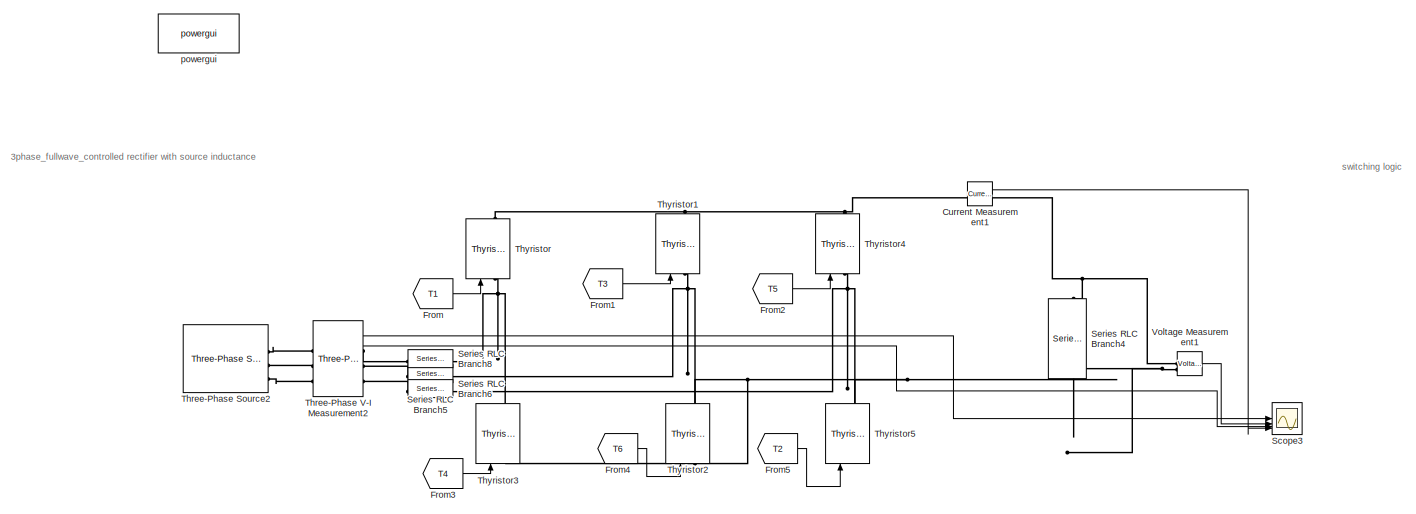
[diagram: root canvas - part 1/3, top left region]
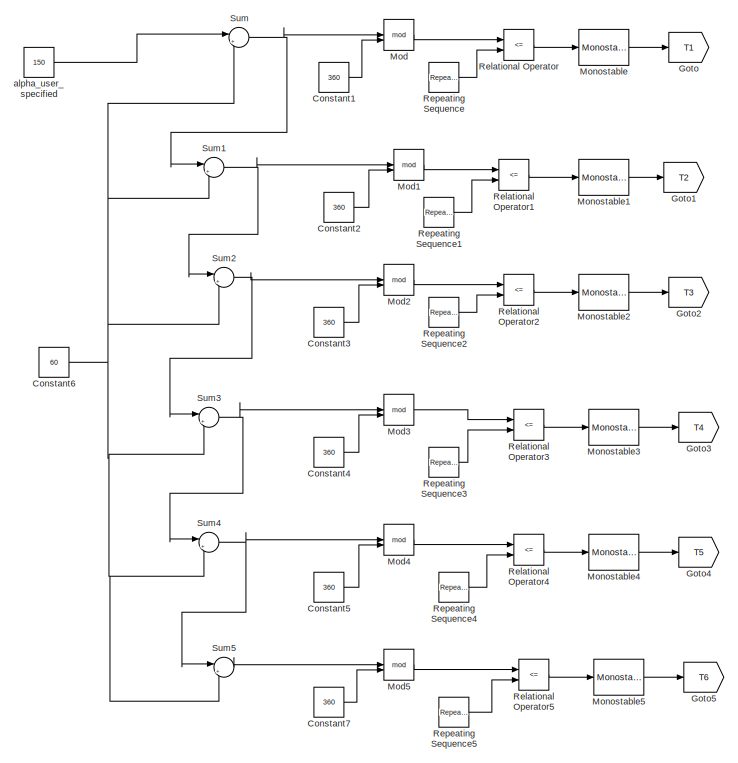
[diagram: root canvas - part 2/3, right side, full height]
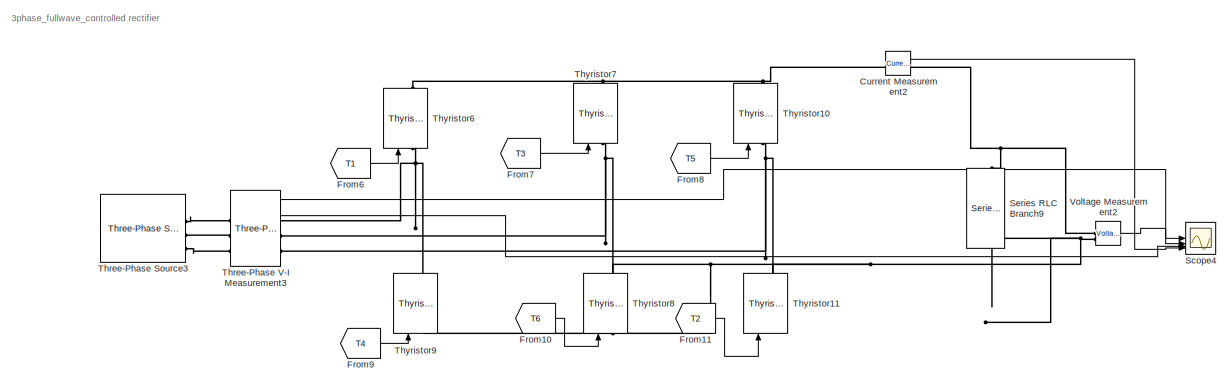
[diagram: root canvas - part 3/3, bottom left region]
MODEL slx_f07519f8de92
KIND model
CONFIG AbsTol = auto
CONFIG EnableMultiTasking = off
CONFIG FixedStep = auto
CONFIG MaxStep = auto
CONFIG MinStep = auto
CONFIG RelTol = 1e-3
CONFIG SampleTimeConstraint = Unconstrained
CONFIG SolverName = VariableStepAuto
CONFIG StartTime = 0.0
CONFIG StopTime = .1
BLOCK [Constant] Constant1
  Value = 360
BLOCK [Constant] Constant2
  Value = 360
BLOCK [Constant] Constant3
  Value = 360
BLOCK [Constant] Constant4
  Value = 360
BLOCK [Constant] Constant5
  Value = 360
BLOCK [Constant] Constant6
  Value = 60
BLOCK [Constant] Constant7
  Value = 360
BLOCK [Reference] Current Measurement1  REF=spsCurrentMeasurementLib/Current Measurement
  LibrarySourceBlock = sps_lib/Sensors and Measurements/Current Measurement
  SourceBlock = spsCurrentMeasurementLib/Current Measurement
  SourceType = Current Measurement
  UserDataPersistent = on
BLOCK [Reference] Current Measurement2  REF=spsCurrentMeasurementLib/Current Measurement
  LibrarySourceBlock = sps_lib/Sensors and Measurements/Current Measurement
  SourceBlock = spsCurrentMeasurementLib/Current Measurement
  SourceType = Current Measurement
  UserDataPersistent = on
BLOCK [From] From
  GotoTag = T1
BLOCK [From] From1
  GotoTag = T3
BLOCK [From] From10
  GotoTag = T6
BLOCK [From] From11
  GotoTag = T2
BLOCK [From] From2
  GotoTag = T5
BLOCK [From] From3
  GotoTag = T4
BLOCK [From] From4
  GotoTag = T6
BLOCK [From] From5
  GotoTag = T2
BLOCK [From] From6
  GotoTag = T1
BLOCK [From] From7
  GotoTag = T3
BLOCK [From] From8
  GotoTag = T5
BLOCK [From] From9
  GotoTag = T4
BLOCK [Goto] Goto
  GotoTag = T1
BLOCK [Goto] Goto1
  GotoTag = T2
BLOCK [Goto] Goto2
  GotoTag = T3
BLOCK [Goto] Goto3
  GotoTag = T4
BLOCK [Goto] Goto4
  GotoTag = T5
BLOCK [Goto] Goto5
  GotoTag = T6
BLOCK [Math] Mod
  Operator = mod
BLOCK [Math] Mod1
  Operator = mod
BLOCK [Math] Mod2
  Operator = mod
BLOCK [Math] Mod3
  Operator = mod
BLOCK [Math] Mod4
  Operator = mod
BLOCK [Math] Mod5
  Operator = mod
BLOCK [Reference] Monostable  REF=spsMonostableLib/Monostable
  LibrarySourceBlock = sps_lib/Control/Monostable
  SourceBlock = spsMonostableLib/Monostable
  SourceType = Monostable
BLOCK [Reference] Monostable1  REF=spsMonostableLib/Monostable
  LibrarySourceBlock = sps_lib/Control/Monostable
  SourceBlock = spsMonostableLib/Monostable
  SourceType = Monostable
BLOCK [Reference] Monostable2  REF=spsMonostableLib/Monostable
  LibrarySourceBlock = sps_lib/Control/Monostable
  SourceBlock = spsMonostableLib/Monostable
  SourceType = Monostable
BLOCK [Reference] Monostable3  REF=spsMonostableLib/Monostable
  LibrarySourceBlock = sps_lib/Control/Monostable
  SourceBlock = spsMonostableLib/Monostable
  SourceType = Monostable
BLOCK [Reference] Monostable4  REF=spsMonostableLib/Monostable
  LibrarySourceBlock = sps_lib/Control/Monostable
  SourceBlock = spsMonostableLib/Monostable
  SourceType = Monostable
BLOCK [Reference] Monostable5  REF=spsMonostableLib/Monostable
  LibrarySourceBlock = sps_lib/Control/Monostable
  SourceBlock = spsMonostableLib/Monostable
  SourceType = Monostable
BLOCK [RelationalOperator] Relational Operator
  InputSameDT = off
  Operator = <=
  OutDataTypeStr = boolean
  RndMeth = Simplest
BLOCK [RelationalOperator] Relational Operator1
  InputSameDT = off
  Operator = <=
  OutDataTypeStr = boolean
  RndMeth = Simplest
BLOCK [RelationalOperator] Relational Operator2
  InputSameDT = off
  Operator = <=
  OutDataTypeStr = boolean
  RndMeth = Simplest
BLOCK [RelationalOperator] Relational Operator3
  InputSameDT = off
  Operator = <=
  OutDataTypeStr = boolean
  RndMeth = Simplest
BLOCK [RelationalOperator] Relational Operator4
  InputSameDT = off
  Operator = <=
  OutDataTypeStr = boolean
  RndMeth = Simplest
BLOCK [RelationalOperator] Relational Operator5
  InputSameDT = off
  Operator = <=
  OutDataTypeStr = boolean
  RndMeth = Simplest
BLOCK [Reference] Repeating Sequence  REF=simulink/Sources/Repeating
Sequence
  SourceBlock = simulink/Sources/Repeating\nSequence
  SourceType = Repeating table
BLOCK [Reference] Repeating Sequence1  REF=simulink/Sources/Repeating
Sequence
  SourceBlock = simulink/Sources/Repeating\nSequence
  SourceType = Repeating table
BLOCK [Reference] Repeating Sequence2  REF=simulink/Sources/Repeating
Sequence
  SourceBlock = simulink/Sources/Repeating\nSequence
  SourceType = Repeating table
BLOCK [Reference] Repeating Sequence3  REF=simulink/Sources/Repeating
Sequence
  SourceBlock = simulink/Sources/Repeating\nSequence
  SourceType = Repeating table
BLOCK [Reference] Repeating Sequence4  REF=simulink/Sources/Repeating
Sequence
  SourceBlock = simulink/Sources/Repeating\nSequence
  SourceType = Repeating table
BLOCK [Reference] Repeating Sequence5  REF=simulink/Sources/Repeating
Sequence
  SourceBlock = simulink/Sources/Repeating\nSequence
  SourceType = Repeating table
BLOCK [Scope] Scope3
  Floating = off
  NumInputPorts = 4
  ScopeSpecificationString = Simulink.scopes.TimeScopeBlockCfg('CurrentConfiguration', extmgr.ConfigurationSet(extmgr.Configuration('Core','General UI',true),extmgr.Configuration('Core','Source UI',true),extmgr.Configuration('Sources','WiredSimulink',true,'DataLoggingVariableName','ScopeData1'),extmgr.Configuration('Visuals','Time Domain',true,'SerializedDisplays',{struct('MinYLimReal','-707.10678','MaxYLimReal','707.10678','...<+4113ch>
BLOCK [Scope] Scope4
  Floating = off
  NumInputPorts = 4
  ScopeSpecificationString = Simulink.scopes.TimeScopeBlockCfg('CurrentConfiguration', extmgr.ConfigurationSet(extmgr.Configuration('Core','General UI',true),extmgr.Configuration('Core','Source UI',true),extmgr.Configuration('Sources','WiredSimulink',true,'DataLoggingVariableName','ScopeData3'),extmgr.Configuration('Visuals','Time Domain',true,'SerializedDisplays',{struct('MinYLimReal','-707.10678','MaxYLimReal','707.10678','...<+4113ch>
BLOCK [Reference] Series RLC Branch4  REF=spsSeriesRLCBranchLib/Series RLC Branch
  LibrarySourceBlock = sps_lib/Passives/Series RLC Branch
  NameLocation = left
  SourceBlock = spsSeriesRLCBranchLib/Series RLC Branch
  SourceType = Series RLC Branch
BLOCK [Reference] Series RLC Branch5  REF=spsSeriesRLCBranchLib/Series RLC Branch
  LibrarySourceBlock = sps_lib/Passives/Series RLC Branch
  NameLocation = top
  SourceBlock = spsSeriesRLCBranchLib/Series RLC Branch
  SourceType = Series RLC Branch
BLOCK [Reference] Series RLC Branch6  REF=spsSeriesRLCBranchLib/Series RLC Branch
  LibrarySourceBlock = sps_lib/Passives/Series RLC Branch
  NameLocation = top
  SourceBlock = spsSeriesRLCBranchLib/Series RLC Branch
  SourceType = Series RLC Branch
BLOCK [Reference] Series RLC Branch8  REF=spsSeriesRLCBranchLib/Series RLC Branch
  LibrarySourceBlock = sps_lib/Passives/Series RLC Branch
  NameLocation = top
  SourceBlock = spsSeriesRLCBranchLib/Series RLC Branch
  SourceType = Series RLC Branch
BLOCK [Reference] Series RLC Branch9  REF=spsSeriesRLCBranchLib/Series RLC Branch
  LibrarySourceBlock = sps_lib/Passives/Series RLC Branch
  NameLocation = left
  SourceBlock = spsSeriesRLCBranchLib/Series RLC Branch
  SourceType = Series RLC Branch
BLOCK [Sum] Sum
  Inputs = |++
BLOCK [Sum] Sum1
  Inputs = |++
BLOCK [Sum] Sum2
  Inputs = |++
BLOCK [Sum] Sum3
  Inputs = |++
BLOCK [Sum] Sum4
  Inputs = |++
BLOCK [Sum] Sum5
  Inputs = |++
BLOCK [Reference] Three-Phase Source2  REF=spsThreePhaseSourceLib/Three-Phase Source
  LibrarySourceBlock = sps_lib/Sources/Three-Phase Source
  SourceBlock = spsThreePhaseSourceLib/Three-Phase Source
  SourceType = Three-Phase Source
BLOCK [Reference] Three-Phase Source3  REF=spsThreePhaseSourceLib/Three-Phase Source
  LibrarySourceBlock = sps_lib/Sources/Three-Phase Source
  SourceBlock = spsThreePhaseSourceLib/Three-Phase Source
  SourceType = Three-Phase Source
BLOCK [Reference] Three-Phase V-I Measurement2  REF=spsThreePhaseVIMeasurementLib/Three-Phase
V-I Measurement
  LibrarySourceBlock = sps_lib/Sensors and Measurements/Three-Phase\nV-I Measurement
  SourceBlock = spsThreePhaseVIMeasurementLib/Three-Phase\nV-I Measurement
  SourceType = Three-Phase VI Measurement
BLOCK [Reference] Three-Phase V-I Measurement3  REF=spsThreePhaseVIMeasurementLib/Three-Phase
V-I Measurement
  LibrarySourceBlock = sps_lib/Sensors and Measurements/Three-Phase\nV-I Measurement
  SourceBlock = spsThreePhaseVIMeasurementLib/Three-Phase\nV-I Measurement
  SourceType = Three-Phase VI Measurement
BLOCK [Reference] Thyristor  REF=spsThyristorLib/Thyristor
  LibrarySourceBlock = sps_lib/Power Electronics/Thyristor
  NameLocation = right
  SourceBlock = spsThyristorLib/Thyristor
  SourceType = Thyristor
BLOCK [Reference] Thyristor1  REF=spsThyristorLib/Thyristor
  LibrarySourceBlock = sps_lib/Power Electronics/Thyristor
  NameLocation = right
  SourceBlock = spsThyristorLib/Thyristor
  SourceType = Thyristor
BLOCK [Reference] Thyristor10  REF=spsThyristorLib/Thyristor
  LibrarySourceBlock = sps_lib/Power Electronics/Thyristor
  NameLocation = right
  SourceBlock = spsThyristorLib/Thyristor
  SourceType = Thyristor
BLOCK [Reference] Thyristor11  REF=spsThyristorLib/Thyristor
  LibrarySourceBlock = sps_lib/Power Electronics/Thyristor
  NameLocation = right
  SourceBlock = spsThyristorLib/Thyristor
  SourceType = Thyristor
BLOCK [Reference] Thyristor2  REF=spsThyristorLib/Thyristor
  LibrarySourceBlock = sps_lib/Power Electronics/Thyristor
  NameLocation = right
  SourceBlock = spsThyristorLib/Thyristor
  SourceType = Thyristor
BLOCK [Reference] Thyristor3  REF=spsThyristorLib/Thyristor
  LibrarySourceBlock = sps_lib/Power Electronics/Thyristor
  NameLocation = right
  SourceBlock = spsThyristorLib/Thyristor
  SourceType = Thyristor
BLOCK [Reference] Thyristor4  REF=spsThyristorLib/Thyristor
  LibrarySourceBlock = sps_lib/Power Electronics/Thyristor
  NameLocation = right
  SourceBlock = spsThyristorLib/Thyristor
  SourceType = Thyristor
BLOCK [Reference] Thyristor5  REF=spsThyristorLib/Thyristor
  LibrarySourceBlock = sps_lib/Power Electronics/Thyristor
  NameLocation = right
  SourceBlock = spsThyristorLib/Thyristor
  SourceType = Thyristor
BLOCK [Reference] Thyristor6  REF=spsThyristorLib/Thyristor
  LibrarySourceBlock = sps_lib/Power Electronics/Thyristor
  NameLocation = right
  SourceBlock = spsThyristorLib/Thyristor
  SourceType = Thyristor
BLOCK [Reference] Thyristor7  REF=spsThyristorLib/Thyristor
  LibrarySourceBlock = sps_lib/Power Electronics/Thyristor
  NameLocation = right
  SourceBlock = spsThyristorLib/Thyristor
  SourceType = Thyristor
BLOCK [Reference] Thyristor8  REF=spsThyristorLib/Thyristor
  LibrarySourceBlock = sps_lib/Power Electronics/Thyristor
  NameLocation = right
  SourceBlock = spsThyristorLib/Thyristor
  SourceType = Thyristor
BLOCK [Reference] Thyristor9  REF=spsThyristorLib/Thyristor
  LibrarySourceBlock = sps_lib/Power Electronics/Thyristor
  NameLocation = right
  SourceBlock = spsThyristorLib/Thyristor
  SourceType = Thyristor
BLOCK [Reference] Voltage Measurement1  REF=spsVoltageMeasurementLib/Voltage Measurement
  LibrarySourceBlock = sps_lib/Sensors and Measurements/Voltage Measurement
  SourceBlock = spsVoltageMeasurementLib/Voltage Measurement
  SourceType = Voltage Measurement
  UserDataPersistent = on
BLOCK [Reference] Voltage Measurement2  REF=spsVoltageMeasurementLib/Voltage Measurement
  LibrarySourceBlock = sps_lib/Sensors and Measurements/Voltage Measurement
  SourceBlock = spsVoltageMeasurementLib/Voltage Measurement
  SourceType = Voltage Measurement
  UserDataPersistent = on
BLOCK [Constant] alpha_user_specified
  Value = 150
BLOCK [Reference] powergui  REF=spspowerguiLib/powergui
  LibrarySourceBlock = sps_lib/powergui
  Priority = 1
  SourceBlock = spspowerguiLib/powergui
  SourceType = PSB option menu block
ANNOTATION (root): 3phase_fullwave_controlled rectifier
ANNOTATION (root): 3phase_fullwave_controlled rectifier with source inductance
ANNOTATION (root): switching logic
LINE Constant1:1 -> Mod:2
LINE Constant2:1 -> Mod1:2
LINE Constant3:1 -> Mod2:2
LINE Constant4:1 -> Mod3:2
LINE Constant5:1 -> Mod4:2
NET Constant6:1 -> Sum1:2, Sum2:2, Sum3:2, Sum4:2, Sum5:2, Sum:2
LINE Constant7:1 -> Mod5:2
LINE Current Measurement1:1 -> Scope3:4
LINE Current Measurement2:1 -> Scope4:4
LINE From10:1 -> Thyristor8:1
LINE From11:1 -> Thyristor11:1
LINE From1:1 -> Thyristor1:1
LINE From2:1 -> Thyristor4:1
LINE From3:1 -> Thyristor3:1
LINE From4:1 -> Thyristor2:1
LINE From5:1 -> Thyristor5:1
LINE From6:1 -> Thyristor6:1
LINE From7:1 -> Thyristor7:1
LINE From8:1 -> Thyristor10:1
LINE From9:1 -> Thyristor9:1
LINE From:1 -> Thyristor:1
LINE Mod1:1 -> Relational Operator1:1
LINE Mod2:1 -> Relational Operator2:1
LINE Mod3:1 -> Relational Operator3:1
LINE Mod4:1 -> Relational Operator4:1
LINE Mod5:1 -> Relational Operator5:1
LINE Mod:1 -> Relational Operator:1
LINE Monostable1:1 -> Goto1:1
LINE Monostable2:1 -> Goto2:1
LINE Monostable3:1 -> Goto3:1
LINE Monostable4:1 -> Goto4:1
LINE Monostable5:1 -> Goto5:1
LINE Monostable:1 -> Goto:1
LINE Relational Operator1:1 -> Monostable1:1
LINE Relational Operator2:1 -> Monostable2:1
LINE Relational Operator3:1 -> Monostable3:1
LINE Relational Operator4:1 -> Monostable4:1
LINE Relational Operator5:1 -> Monostable5:1
LINE Relational Operator:1 -> Monostable:1
LINE Repeating Sequence1:1 -> Relational Operator1:2
LINE Repeating Sequence2:1 -> Relational Operator2:2
LINE Repeating Sequence3:1 -> Relational Operator3:2
LINE Repeating Sequence4:1 -> Relational Operator4:2
LINE Repeating Sequence5:1 -> Relational Operator5:2
LINE Repeating Sequence:1 -> Relational Operator:2
NET Sum1:1 -> Mod1:1, Sum2:1
NET Sum2:1 -> Mod2:1, Sum3:1
NET Sum3:1 -> Mod3:1, Sum4:1
NET Sum4:1 -> Mod4:1, Sum5:1
LINE Sum5:1 -> Mod5:1
NET Sum:1 -> Mod:1, Sum1:1
LINE Three-Phase V-I Measurement2:1 -> Scope3:1
LINE Three-Phase V-I Measurement2:2 -> Scope3:3
LINE Three-Phase V-I Measurement3:1 -> Scope4:1
LINE Three-Phase V-I Measurement3:2 -> Scope4:3
LINE Voltage Measurement1:1 -> Scope3:2
LINE Voltage Measurement2:1 -> Scope4:2
LINE alpha_user_specified:1 -> Sum:1
PNET net1: Current Measurement1:LConn1 -- Thyristor1:RConn1 -- Thyristor4:RConn1 -- Thyristor:RConn1
PNET net2: Current Measurement1:RConn1 -- Series RLC Branch4:LConn1 -- Voltage Measurement1:LConn1
PNET net3: Current Measurement2:LConn1 -- Thyristor10:RConn1 -- Thyristor6:RConn1 -- Thyristor7:RConn1
PNET net4: Current Measurement2:RConn1 -- Series RLC Branch9:LConn1 -- Voltage Measurement2:LConn1
PNET net5: Series RLC Branch4:RConn1 -- Thyristor2:LConn1 -- Thyristor3:LConn1 -- Thyristor5:LConn1 -- Voltage Measurement1:LConn2
PNET net6: Series RLC Branch5:LConn1 -- Thyristor1:LConn1 -- Thyristor2:RConn1
PLINE Series RLC Branch5:RConn1 -- Three-Phase V-I Measurement2:RConn2
PNET net7: Series RLC Branch6:LConn1 -- Thyristor4:LConn1 -- Thyristor5:RConn1
PLINE Series RLC Branch6:RConn1 -- Three-Phase V-I Measurement2:RConn3
PNET net8: Series RLC Branch8:LConn1 -- Thyristor3:RConn1 -- Thyristor:LConn1
PLINE Series RLC Branch8:RConn1 -- Three-Phase V-I Measurement2:RConn1
PNET net9: Series RLC Branch9:RConn1 -- Thyristor11:LConn1 -- Thyristor8:LConn1 -- Thyristor9:LConn1 -- Voltage Measurement2:LConn2
PLINE Three-Phase Source2:RConn1 -- Three-Phase V-I Measurement2:LConn1
PLINE Three-Phase Source2:RConn2 -- Three-Phase V-I Measurement2:LConn2
PLINE Three-Phase Source2:RConn3 -- Three-Phase V-I Measurement2:LConn3
PLINE Three-Phase Source3:RConn1 -- Three-Phase V-I Measurement3:LConn1
PLINE Three-Phase Source3:RConn2 -- Three-Phase V-I Measurement3:LConn2
PLINE Three-Phase Source3:RConn3 -- Three-Phase V-I Measurement3:LConn3
PNET net10: Three-Phase V-I Measurement3:RConn1 -- Thyristor6:LConn1 -- Thyristor9:RConn1
PNET net11: Three-Phase V-I Measurement3:RConn2 -- Thyristor7:LConn1 -- Thyristor8:RConn1
PNET net12: Three-Phase V-I Measurement3:RConn3 -- Thyristor10:LConn1 -- Thyristor11:RConn1
note: NET lines group one-source signal fan-out (src -> all destinations, sorted); 1:1 wires keep LINE; PNET lines group multi-terminal physical nets as a canonical sorted terminal list (undirected conserving connections); 2-terminal nets keep the pairwise PLINE form
